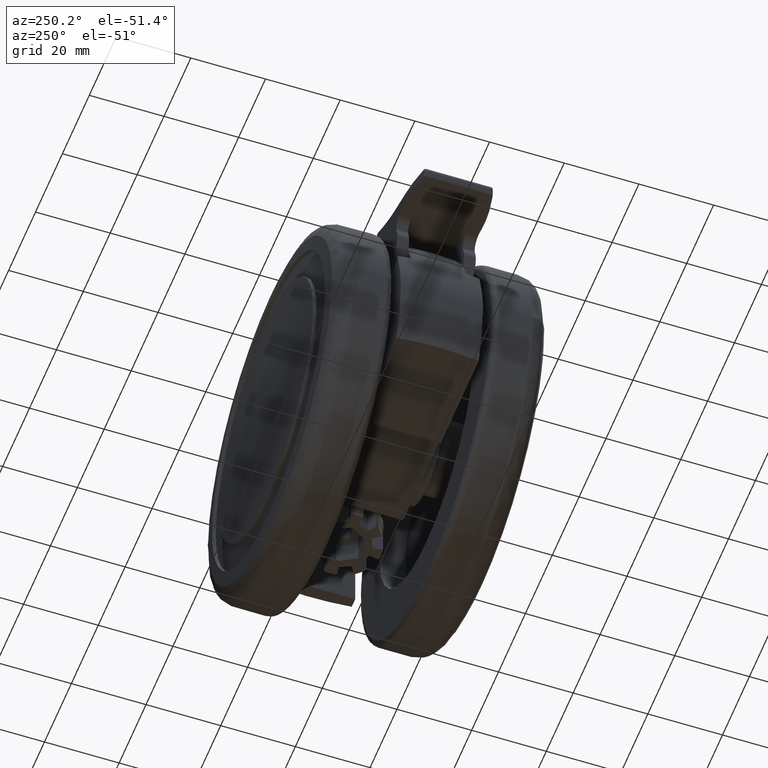
[diagram: clean part render]
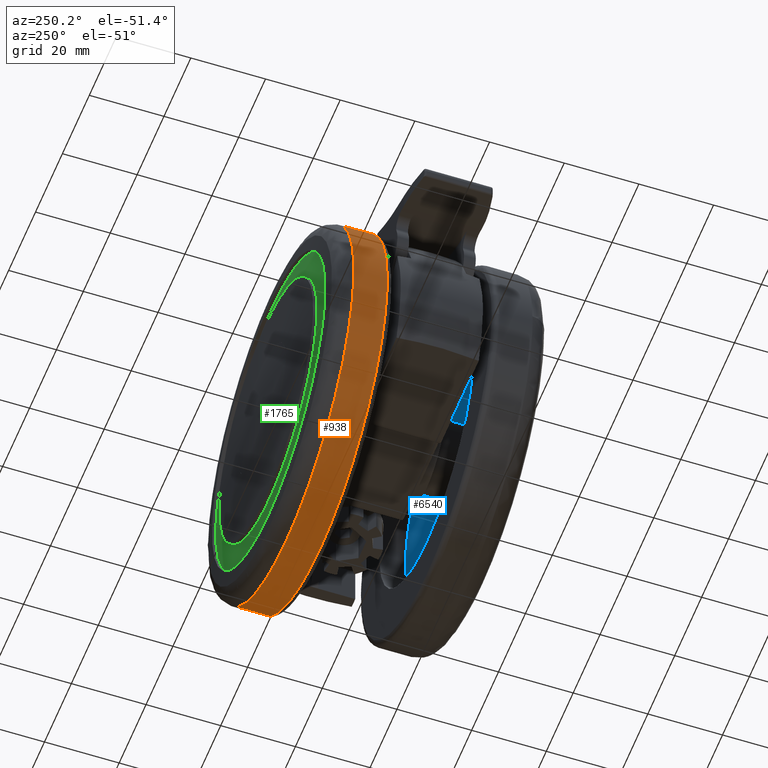
[diagram: same view with three faces highlighted in distinct colors, each labeled with its STEP entity id]
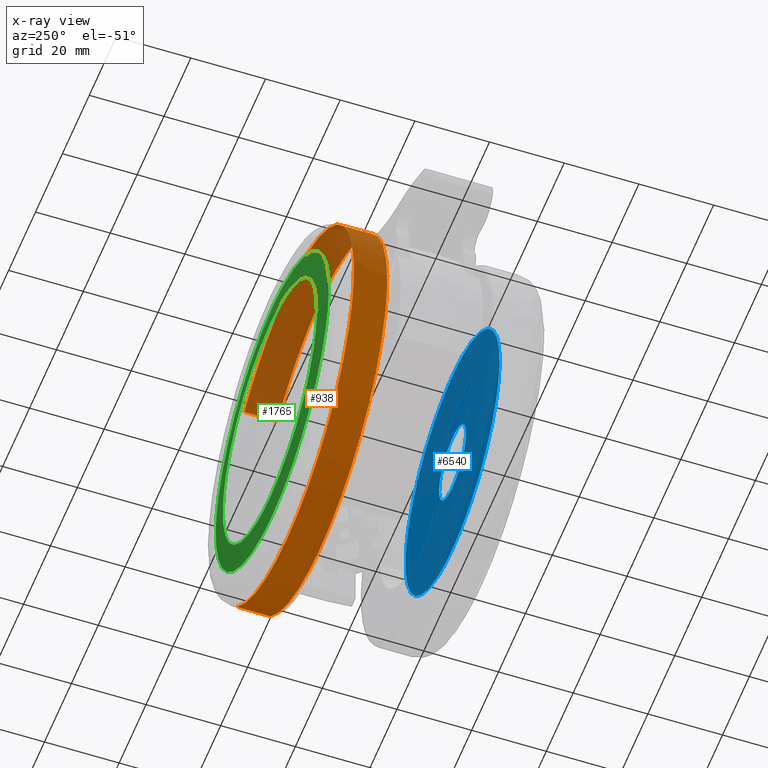
[diagram: x-ray of the same camera — body ghosted, the three highlighted faces saturated]
A machine part, auxiliary view with three faces highlighted in distinct colors.
The next image is the same camera in x-ray (body ghosted, the three faces saturated) — at least one of them is partly hidden behind the body in this view.
Their STEP definitions:

[orange] entity #938 — the highlighted face is a freeform B-spline surface patch.
#776=CARTESIAN_POINT('',(31.615890266188977,24.139445300475035,38.735455111258162));
#777=CARTESIAN_POINT('',(-4.964070014249776,24.139445300475032,68.592029839659190));
#778=CARTESIAN_POINT('',(-36.863866840506191,24.139445300475039,33.779510380783002));
#779=CARTESIAN_POINT('',(-70.643377221289199,24.139445300475042,-3.084356459723188));
#780=CARTESIAN_POINT('',(-33.779510380783002,24.139445300475039,-36.863866840506191));
#781=CARTESIAN_POINT('',(3.084356459723188,24.139445300475042,-70.643377221289199));
#782=CARTESIAN_POINT('',(36.863866840506191,24.139445300475039,-33.779510380783002));
#783=CARTESIAN_POINT('',(31.615890266188977,14.771513861082045,38.735455111258162));
#784=CARTESIAN_POINT('',(-4.964070014249776,14.771513861082044,68.592029839659190));
#785=CARTESIAN_POINT('',(-36.863866840506191,14.771513861082051,33.779510380783002));
#786=CARTESIAN_POINT('',(-70.643377221289199,14.771513861082051,-3.084356459723188));
#787=CARTESIAN_POINT('',(-33.779510380783002,14.771513861082051,-36.863866840506191));
#788=CARTESIAN_POINT('',(3.084356459723188,14.771513861082051,-70.643377221289199));
#789=CARTESIAN_POINT('',(36.863866840506191,14.771513861082051,-33.779510380783002));
#797=(BOUNDED_SURFACE()B_SPLINE_SURFACE(2,1,((#776,#783),(#777,#784),(#778,#785),(#779,#786),(#780,#787),(#781,#788),(#782,#789)),.UNSPECIFIED.,.F.,.F.,.U.)B_SPLINE_SURFACE_WITH_KNOTS((3,2,2,3),(2,2),(0.0,79.529003975634240,162.371716450253300,245.214428924872290),(0.0,9.367931439392990),.UNSPECIFIED.)GEOMETRIC_REPRESENTATION_ITEM()RATIONAL_B_SPLINE_SURFACE(((0.977505800795127,0.977505800795127),(0.718822509939086,0.718822509939086),(1.0,1.0),(0.707106781186548,0.707106781186548),(1.0,1.0),(0.707106781186548,0.707106781186548),(1.0,1.0)))REPRESENTATION_ITEM('')SURFACE());
#798=CARTESIAN_POINT('',(0.0,23.916532000000000,50.0));
#799=VERTEX_POINT('',#798);
#800=CARTESIAN_POINT('',(31.615886734342919,23.916532000065072,38.735457993937111));
#801=VERTEX_POINT('',#800);
#802=CARTESIAN_POINT('',(0.0,23.916532000000000,50.0));
#803=CARTESIAN_POINT('',(17.814686174543560,23.916531999999997,50.0));
#804=CARTESIAN_POINT('',(31.615886734342919,23.916532000065079,38.735457993937111));
#812=(BOUNDED_CURVE()B_SPLINE_CURVE(2,(#802,#803,#804),.UNSPECIFIED.,.F.,.U.)B_SPLINE_CURVE_WITH_KNOTS((3,3),(0.0,0.109768964436381),.UNSPECIFIED.)CURVE()GEOMETRIC_REPRESENTATION_ITEM()RATIONAL_B_SPLINE_CURVE((1.0,0.871397658721636,0.855727684053033))REPRESENTATION_ITEM(''));
#813=EDGE_CURVE('',#799,#801,#812,.T.);
#814=ORIENTED_EDGE('',*,*,#813,.F.);
#815=CARTESIAN_POINT('',(-49.806680457157938,23.916532000311019,-4.392559827544803));
#816=VERTEX_POINT('',#815);
#817=CARTESIAN_POINT('',(-49.806680457157938,23.916532000311015,-4.392559827544803));
#818=CARTESIAN_POINT('',(-50.000000000000007,23.916532000000000,-2.200533975998728));
#819=CARTESIAN_POINT('',(-50.0,23.916532000000000,0.0));
#820=CARTESIAN_POINT('',(-49.999999999999993,23.916531999999997,49.999999999999993));
#821=CARTESIAN_POINT('',(0.0,23.916532000000000,50.0));
#829=(BOUNDED_CURVE()B_SPLINE_CURVE(2,(#817,#818,#819,#820,#821),.UNSPECIFIED.,.F.,.U.)B_SPLINE_CURVE_WITH_KNOTS((3,2,3),(0.734718454855990,0.750000000000000,1.0),.UNSPECIFIED.)CURVE()GEOMETRIC_REPRESENTATION_ITEM()RATIONAL_B_SPLINE_CURVE((0.966381850709810,0.982096556217312,1.0,0.707106781186547,1.0))REPRESENTATION_ITEM(''));
#830=EDGE_CURVE('',#816,#799,#829,.T.);
#831=ORIENTED_EDGE('',*,*,#830,.F.);
#832=CARTESIAN_POINT('',(0.0,23.916532000000000,-50.0));
#833=VERTEX_POINT('',#832);
#834=CARTESIAN_POINT('',(0.0,23.916532000000000,-50.0));
#835=CARTESIAN_POINT('',(-45.784460793044012,23.916532000000004,-49.999999999999993));
#836=CARTESIAN_POINT('',(-49.806680457157938,23.916532000311015,-4.392559827544803));
#844=(BOUNDED_CURVE()B_SPLINE_CURVE(2,(#834,#835,#836),.UNSPECIFIED.,.F.,.U.)B_SPLINE_CURVE_WITH_KNOTS((3,3),(0.500000000000000,0.734718454855991),.UNSPECIFIED.)CURVE()GEOMETRIC_REPRESENTATION_ITEM()RATIONAL_B_SPLINE_CURVE((1.0,0.725010224969235,0.966381850709812))REPRESENTATION_ITEM(''));
#845=EDGE_CURVE('',#833,#816,#844,.T.);
#846=ORIENTED_EDGE('',*,*,#845,.F.);
#847=CARTESIAN_POINT('',(36.863868238531467,23.916531999999918,-33.779508855106009));
#848=VERTEX_POINT('',#847);
#849=CARTESIAN_POINT('',(36.863868238531516,23.916532000000000,-33.779508855106045));
#850=CARTESIAN_POINT('',(22.000527779582949,23.916532000000004,-50.000000000000014));
#851=CARTESIAN_POINT('',(0.0,23.916532000000000,-50.0));
#859=(BOUNDED_CURVE()B_SPLINE_CURVE(2,(#849,#850,#851),.UNSPECIFIED.,.F.,.U.)B_SPLINE_CURVE_WITH_KNOTS((3,3),(0.368415202836315,0.500000000000000),.UNSPECIFIED.)CURVE()GEOMETRIC_REPRESENTATION_ITEM()RATIONAL_B_SPLINE_CURVE((0.853959781609135,0.845838820847252,1.0))REPRESENTATION_ITEM(''));
#860=EDGE_CURVE('',#848,#833,#859,.T.);
#861=ORIENTED_EDGE('',*,*,#860,.F.);
#862=CARTESIAN_POINT('',(36.863869205047358,14.999999997920209,-33.779507800283461));
#863=VERTEX_POINT('',#862);
#864=CARTESIAN_POINT('',(36.863868238531467,23.916531999999918,-33.779508855106009));
#865=CARTESIAN_POINT('',(36.863869205047358,14.999999997920209,-33.779507800283461));
#866=QUASI_UNIFORM_CURVE('',1,(#864,#865),.UNSPECIFIED.,.F.,.U.);
#867=EDGE_CURVE('',#848,#863,#866,.T.);
#868=ORIENTED_EDGE('',*,*,#867,.T.);
#869=CARTESIAN_POINT('',(0.0,15.0,-50.0));
#870=VERTEX_POINT('',#869);
#871=CARTESIAN_POINT('',(36.863869205047358,14.999999997920215,-33.779507800283461));
#872=CARTESIAN_POINT('',(22.000528633359519,14.999999999999995,-49.999999999999993));
#873=CARTESIAN_POINT('',(0.0,15.0,-50.0));
#881=(BOUNDED_CURVE()B_SPLINE_CURVE(2,(#871,#872,#873),.UNSPECIFIED.,.F.,.U.)B_SPLINE_CURVE_WITH_KNOTS((3,3),(0.368415198517103,0.500000000000000),.UNSPECIFIED.)CURVE()GEOMETRIC_REPRESENTATION_ITEM()RATIONAL_B_SPLINE_CURVE((0.853959782142269,0.845838815786981,1.0))REPRESENTATION_ITEM(''));
#882=EDGE_CURVE('',#863,#870,#881,.T.);
#883=ORIENTED_EDGE('',*,*,#882,.T.);
#884=CARTESIAN_POINT('',(-49.984209464156407,14.999999993750169,1.256504772508648));
#885=VERTEX_POINT('',#884);
#886=CARTESIAN_POINT('',(0.0,15.0,-50.0));
#887=CARTESIAN_POINT('',(-49.999999999999993,14.999999999999996,-49.999999999999993));
#888=CARTESIAN_POINT('',(-50.0,15.0,0.0));
#889=CARTESIAN_POINT('',(-49.999999999999993,14.999999999999995,0.628351606510832));
#890=CARTESIAN_POINT('',(-49.984209464156415,14.999999993750171,1.256504772508647));
#898=(BOUNDED_CURVE()B_SPLINE_CURVE(2,(#886,#887,#888,#889,#890),.UNSPECIFIED.,.F.,.U.)B_SPLINE_CURVE_WITH_KNOTS((3,2,3),(0.500000000000000,0.750000000000000,0.754420108232585),.UNSPECIFIED.)CURVE()GEOMETRIC_REPRESENTATION_ITEM()RATIONAL_B_SPLINE_CURVE((1.0,0.707106781186547,1.0,0.994821521089018,0.989826157676169))REPRESENTATION_ITEM(''));
#899=EDGE_CURVE('',#870,#885,#898,.T.);
#900=ORIENTED_EDGE('',*,*,#899,.T.);
#901=CARTESIAN_POINT('',(0.0,15.0,50.0));
#902=VERTEX_POINT('',#901);
#903=CARTESIAN_POINT('',(-49.984209464156415,14.999999993750173,1.256504772508648));
#904=CARTESIAN_POINT('',(-48.758893808365457,15.000000000000005,49.999999999999993));
#905=CARTESIAN_POINT('',(0.0,15.0,50.0));
#913=(BOUNDED_CURVE()B_SPLINE_CURVE(2,(#903,#904,#905),.UNSPECIFIED.,.F.,.U.)B_SPLINE_CURVE_WITH_KNOTS((3,3),(0.754420108232585,1.0),.UNSPECIFIED.)CURVE()GEOMETRIC_REPRESENTATION_ITEM()RATIONAL_B_SPLINE_CURVE((0.989826157676168,0.712285260097530,1.0))REPRESENTATION_ITEM(''));
#914=EDGE_CURVE('',#885,#902,#913,.T.);
#915=ORIENTED_EDGE('',*,*,#914,.T.);
#916=CARTESIAN_POINT('',(31.615886728408181,15.0,38.735457998795383));
#917=VERTEX_POINT('',#916);
#918=CARTESIAN_POINT('',(0.0,15.0,50.0));
#919=CARTESIAN_POINT('',(17.814686170232793,15.000000000000002,49.999999999999986));
#920=CARTESIAN_POINT('',(31.615886728408181,14.999999999999998,38.735457998795383));
#928=(BOUNDED_CURVE()B_SPLINE_CURVE(2,(#918,#919,#920),.UNSPECIFIED.,.F.,.U.)B_SPLINE_CURVE_WITH_KNOTS((3,3),(0.0,0.109768964413235),.UNSPECIFIED.)CURVE()GEOMETRIC_REPRESENTATION_ITEM()RATIONAL_B_SPLINE_CURVE((1.0,0.871397658748753,0.855727684059641))REPRESENTATION_ITEM(''));
#929=EDGE_CURVE('',#902,#917,#928,.T.);
#930=ORIENTED_EDGE('',*,*,#929,.T.);
#931=CARTESIAN_POINT('',(31.615886734342919,23.916532000065072,38.735457993937111));
#932=CARTESIAN_POINT('',(31.615886728408181,15.0,38.735457998795383));
#933=QUASI_UNIFORM_CURVE('',1,(#931,#932),.UNSPECIFIED.,.F.,.U.);
#934=EDGE_CURVE('',#801,#917,#933,.T.);
#935=ORIENTED_EDGE('',*,*,#934,.F.);
#936=EDGE_LOOP('',(#814,#831,#846,#861,#868,#883,#900,#915,#930,#935));
#937=FACE_OUTER_BOUND('',#936,.T.);
#938=ADVANCED_FACE('',(#937),#797,.T.);

[blue] entity #6540 — the highlighted face is a freeform B-spline surface patch.
#5772=CARTESIAN_POINT('',(-34.934720154284733,-20.500000000000000,-2.136662757784329));
#5773=VERTEX_POINT('',#5772);
#5779=CARTESIAN_POINT('',(0.0,-20.500000000000000,-35.0));
#5780=VERTEX_POINT('',#5779);
#5781=CARTESIAN_POINT('',(0.0,-20.500000000000000,-35.0));
#5782=CARTESIAN_POINT('',(-32.924746452729771,-20.500000000000011,-34.999999999999993));
#5783=CARTESIAN_POINT('',(-34.934720154284733,-20.500000000000004,-2.136662757784329));
#5791=(BOUNDED_CURVE()B_SPLINE_CURVE(2,(#5781,#5782,#5783),.UNSPECIFIED.,.F.,.U.)B_SPLINE_CURVE_WITH_KNOTS((3,3),(0.500000000000000,0.739333140672350),.UNSPECIFIED.)CURVE()GEOMETRIC_REPRESENTATION_ITEM()RATIONAL_B_SPLINE_CURVE((1.0,0.719603784238970,0.976072424083774))REPRESENTATION_ITEM(''));
#5792=EDGE_CURVE('',#5780,#5773,#5791,.T.);
#5794=CARTESIAN_POINT('',(34.755336269401873,-20.500000000000000,4.131174264082503));
#5795=VERTEX_POINT('',#5794);
#5796=CARTESIAN_POINT('',(34.755336269401859,-20.500000000000000,4.131174264082503));
#5797=CARTESIAN_POINT('',(35.000000000000007,-20.500000000000004,2.072832086773691));
#5798=CARTESIAN_POINT('',(35.0,-20.500000000000000,0.0));
#5799=CARTESIAN_POINT('',(34.999999999999993,-20.500000000000007,-34.999999999999993));
#5800=CARTESIAN_POINT('',(0.0,-20.500000000000000,-35.0));
#5808=(BOUNDED_CURVE()B_SPLINE_CURVE(2,(#5796,#5797,#5798,#5799,#5800),.UNSPECIFIED.,.F.,.U.)B_SPLINE_CURVE_WITH_KNOTS((3,2,3),(0.229562589970944,0.250000000000000,0.500000000000000),.UNSPECIFIED.)CURVE()GEOMETRIC_REPRESENTATION_ITEM()RATIONAL_B_SPLINE_CURVE((0.956026982445166,0.976056084769518,1.0,0.707106781186548,1.0))REPRESENTATION_ITEM(''));
#5809=EDGE_CURVE('',#5795,#5780,#5808,.T.);
#5853=CARTESIAN_POINT('',(0.0,-20.500000000000000,35.0));
#5854=VERTEX_POINT('',#5853);
#5855=CARTESIAN_POINT('',(0.0,-20.500000000000000,35.0));
#5856=CARTESIAN_POINT('',(31.086129979642852,-20.500000000000000,35.0));
#5857=CARTESIAN_POINT('',(34.755336269401859,-20.500000000000000,4.131174264082503));
#5865=(BOUNDED_CURVE()B_SPLINE_CURVE(2,(#5855,#5856,#5857),.UNSPECIFIED.,.F.,.U.)B_SPLINE_CURVE_WITH_KNOTS((3,3),(0.0,0.229562589970944),.UNSPECIFIED.)CURVE()GEOMETRIC_REPRESENTATION_ITEM()RATIONAL_B_SPLINE_CURVE((1.0,0.731050696417030,0.956026982445166))REPRESENTATION_ITEM(''));
#5866=EDGE_CURVE('',#5854,#5795,#5865,.T.);
#5868=CARTESIAN_POINT('',(-34.934720154284733,-20.500000000000004,-2.136662757784329));
#5869=CARTESIAN_POINT('',(-35.0,-20.499999999999996,-1.069328601837405));
#5870=CARTESIAN_POINT('',(-35.0,-20.500000000000000,0.0));
#5871=CARTESIAN_POINT('',(-34.999999999999993,-20.500000000000007,34.999999999999993));
#5872=CARTESIAN_POINT('',(0.0,-20.500000000000000,35.0));
#5880=(BOUNDED_CURVE()B_SPLINE_CURVE(2,(#5868,#5869,#5870,#5871,#5872),.UNSPECIFIED.,.F.,.U.)B_SPLINE_CURVE_WITH_KNOTS((3,2,3),(0.739333140672350,0.750000000000000,1.0),.UNSPECIFIED.)CURVE()GEOMETRIC_REPRESENTATION_ITEM()RATIONAL_B_SPLINE_CURVE((0.976072424083774,0.987502996947577,1.0,0.707106781186548,1.0))REPRESENTATION_ITEM(''));
#5881=EDGE_CURVE('',#5773,#5854,#5880,.T.);
#5924=CARTESIAN_POINT('',(9.930095263613215,-20.500000000000000,1.180342346764852));
#5925=VERTEX_POINT('',#5924);
#5926=CARTESIAN_POINT('',(0.0,-20.500000000000000,-10.0));
#5927=VERTEX_POINT('',#5926);
#5928=CARTESIAN_POINT('',(9.930095263613215,-20.500000000000004,1.180342346764851));
#5929=CARTESIAN_POINT('',(10.000000000000002,-20.500000000000004,0.592241196718454));
#5930=CARTESIAN_POINT('',(10.0,-20.500000000000000,0.0));
#5931=CARTESIAN_POINT('',(10.000000000000002,-20.500000000000007,-10.000000000000002));
#5932=CARTESIAN_POINT('',(0.0,-20.500000000000000,-10.0));
#5940=(BOUNDED_CURVE()B_SPLINE_CURVE(2,(#5928,#5929,#5930,#5931,#5932),.UNSPECIFIED.,.F.,.U.)B_SPLINE_CURVE_WITH_KNOTS((3,2,3),(0.229562473508930,0.250000000000000,0.500000000000000),.UNSPECIFIED.)CURVE()GEOMETRIC_REPRESENTATION_ITEM()RATIONAL_B_SPLINE_CURVE((0.956026754174725,0.976055948325781,1.0,0.707106781186548,1.0))REPRESENTATION_ITEM(''));
#5941=EDGE_CURVE('',#5925,#5927,#5940,.T.);
#5943=CARTESIAN_POINT('',(-9.981347984204462,-20.500000000000011,-0.610485395580840));
#5944=VERTEX_POINT('',#5943);
#5945=CARTESIAN_POINT('',(0.0,-20.500000000000000,-10.0));
#5946=CARTESIAN_POINT('',(-9.407060668618325,-20.500000000000007,-10.0));
#5947=CARTESIAN_POINT('',(-9.981347984204462,-20.500000000000000,-0.610485395580840));
#5955=(BOUNDED_CURVE()B_SPLINE_CURVE(2,(#5945,#5946,#5947),.UNSPECIFIED.,.F.,.U.)B_SPLINE_CURVE_WITH_KNOTS((3,3),(0.500000000000000,0.739332962233938),.UNSPECIFIED.)CURVE()GEOMETRIC_REPRESENTATION_ITEM()RATIONAL_B_SPLINE_CURVE((1.0,0.719603993292574,0.976072041655991))REPRESENTATION_ITEM(''));
#5956=EDGE_CURVE('',#5927,#5944,#5955,.T.);
#6023=CARTESIAN_POINT('',(0.0,-20.500000000000000,10.0));
#6024=VERTEX_POINT('',#6023);
#6025=CARTESIAN_POINT('',(0.0,-20.500000000000000,10.0));
#6026=CARTESIAN_POINT('',(8.881745259158315,-20.500000000000004,10.0));
#6027=CARTESIAN_POINT('',(9.930095263613215,-20.500000000000000,1.180342346764852));
#6035=(BOUNDED_CURVE()B_SPLINE_CURVE(2,(#6025,#6026,#6027),.UNSPECIFIED.,.F.,.U.)B_SPLINE_CURVE_WITH_KNOTS((3,3),(0.0,0.229562473508930),.UNSPECIFIED.)CURVE()GEOMETRIC_REPRESENTATION_ITEM()RATIONAL_B_SPLINE_CURVE((1.0,0.731050832860767,0.956026754174725))REPRESENTATION_ITEM(''));
#6036=EDGE_CURVE('',#6024,#5925,#6035,.T.);
#6070=CARTESIAN_POINT('',(-9.981347984204462,-20.500000000000007,-0.610485395580840));
#6071=CARTESIAN_POINT('',(-10.0,-20.500000000000000,-0.305527633218810));
#6072=CARTESIAN_POINT('',(-10.0,-20.500000000000000,0.0));
#6073=CARTESIAN_POINT('',(-10.000000000000002,-20.500000000000007,10.000000000000002));
#6074=CARTESIAN_POINT('',(0.0,-20.500000000000000,10.0));
#6082=(BOUNDED_CURVE()B_SPLINE_CURVE(2,(#6070,#6071,#6072,#6073,#6074),.UNSPECIFIED.,.F.,.U.)B_SPLINE_CURVE_WITH_KNOTS((3,2,3),(0.739332962233938,0.750000000000000,1.0),.UNSPECIFIED.)CURVE()GEOMETRIC_REPRESENTATION_ITEM()RATIONAL_B_SPLINE_CURVE((0.976072041655991,0.987502787893974,1.0,0.707106781186548,1.0))REPRESENTATION_ITEM(''));
#6083=EDGE_CURVE('',#5944,#6024,#6082,.T.);
#6523=CARTESIAN_POINT('',(-38.495650623875797,-20.500000000000000,-38.496499864326417));
#6524=CARTESIAN_POINT('',(-38.495650623875797,-20.500000000000000,38.496501741872727));
#6525=CARTESIAN_POINT('',(38.495863412457652,-20.500000000000000,-38.496499864326417));
#6526=CARTESIAN_POINT('',(38.495863412457652,-20.500000000000000,38.496501741872727));
#6527=B_SPLINE_SURFACE_WITH_KNOTS('',1,1,((#6523,#6525),(#6524,#6526)),.UNSPECIFIED.,.F.,.F.,.U.,(2,2),(2,2),(0.0,76.993001606199158),(0.0,76.991514036333456),.UNSPECIFIED.);
#6528=ORIENTED_EDGE('',*,*,#5866,.T.);
#6529=ORIENTED_EDGE('',*,*,#5809,.T.);
#6530=ORIENTED_EDGE('',*,*,#5792,.T.);
#6531=ORIENTED_EDGE('',*,*,#5881,.T.);
#6532=EDGE_LOOP('',(#6528,#6529,#6530,#6531));
#6533=FACE_OUTER_BOUND('',#6532,.T.);
#6534=ORIENTED_EDGE('',*,*,#5956,.F.);
#6535=ORIENTED_EDGE('',*,*,#5941,.F.);
#6536=ORIENTED_EDGE('',*,*,#6036,.F.);
#6537=ORIENTED_EDGE('',*,*,#6083,.F.);
#6538=EDGE_LOOP('',(#6534,#6535,#6536,#6537));
#6539=FACE_BOUND('',#6538,.T.);
#6540=ADVANCED_FACE('',(#6533,#6539),#6527,.T.);

[green] entity #1765 — the highlighted face is a freeform B-spline surface patch.
#464=CARTESIAN_POINT('',(-34.892110147810257,28.426129330010252,-2.746024295435772));
#465=VERTEX_POINT('',#464);
#471=CARTESIAN_POINT('',(0.0,28.426129330010252,35.0));
#472=VERTEX_POINT('',#471);
#473=CARTESIAN_POINT('',(-34.892110147810257,28.426129330010248,-2.746024295435772));
#474=CARTESIAN_POINT('',(-34.999999999999993,28.426129330010248,-1.375131615529014));
#475=CARTESIAN_POINT('',(-35.0,28.426129330010252,0.0));
#476=CARTESIAN_POINT('',(-34.999999999999993,28.426129330010248,34.999999999999993));
#477=CARTESIAN_POINT('',(0.0,28.426129330010252,35.0));
#485=(BOUNDED_CURVE()B_SPLINE_CURVE(2,(#473,#474,#475,#476,#477),.UNSPECIFIED.,.F.,.U.)B_SPLINE_CURVE_WITH_KNOTS((3,2,3),(0.736331517074659,0.750000000000000,1.0),.UNSPECIFIED.)CURVE()GEOMETRIC_REPRESENTATION_ITEM()RATIONAL_B_SPLINE_CURVE((0.969723807869971,0.983986376158800,1.0,0.707106781186548,1.0))REPRESENTATION_ITEM(''));
#486=EDGE_CURVE('',#465,#472,#485,.T.);
#488=CARTESIAN_POINT('',(34.892110147810257,28.426129330010252,2.746024295435781));
#489=VERTEX_POINT('',#488);
#490=CARTESIAN_POINT('',(0.0,28.426129330010252,35.0));
#491=CARTESIAN_POINT('',(32.353708184359206,28.426129330010252,35.000000000000007));
#492=CARTESIAN_POINT('',(34.892110147810257,28.426129330010252,2.746024295435781));
#500=(BOUNDED_CURVE()B_SPLINE_CURVE(2,(#490,#491,#492),.UNSPECIFIED.,.F.,.U.)B_SPLINE_CURVE_WITH_KNOTS((3,3),(0.0,0.236331517074659),.UNSPECIFIED.)CURVE()GEOMETRIC_REPRESENTATION_ITEM()RATIONAL_B_SPLINE_CURVE((1.0,0.723120405027747,0.969723807869971))REPRESENTATION_ITEM(''));
#501=EDGE_CURVE('',#472,#489,#500,.T.);
#547=CARTESIAN_POINT('',(0.0,28.426129330010252,-35.0));
#548=VERTEX_POINT('',#547);
#549=CARTESIAN_POINT('',(34.892110147810257,28.426129330010252,2.746024295435781));
#550=CARTESIAN_POINT('',(35.0,28.426129330010252,1.375131615529022));
#551=CARTESIAN_POINT('',(35.0,28.426129330010252,0.0));
#552=CARTESIAN_POINT('',(34.999999999999993,28.426129330010248,-34.999999999999993));
#553=CARTESIAN_POINT('',(0.0,28.426129330010252,-35.0));
#561=(BOUNDED_CURVE()B_SPLINE_CURVE(2,(#549,#550,#551,#552,#553),.UNSPECIFIED.,.F.,.U.)B_SPLINE_CURVE_WITH_KNOTS((3,2,3),(0.236331517074659,0.250000000000000,0.500000000000000),.UNSPECIFIED.)CURVE()GEOMETRIC_REPRESENTATION_ITEM()RATIONAL_B_SPLINE_CURVE((0.969723807869971,0.983986376158800,1.0,0.707106781186548,1.0))REPRESENTATION_ITEM(''));
#562=EDGE_CURVE('',#489,#548,#561,.T.);
#564=CARTESIAN_POINT('',(0.0,28.426129330010252,-35.0));
#565=CARTESIAN_POINT('',(-32.353708184359206,28.426129330010255,-34.999999999999993));
#566=CARTESIAN_POINT('',(-34.892110147810257,28.426129330010248,-2.746024295435772));
#574=(BOUNDED_CURVE()B_SPLINE_CURVE(2,(#564,#565,#566),.UNSPECIFIED.,.F.,.U.)B_SPLINE_CURVE_WITH_KNOTS((3,3),(0.500000000000000,0.736331517074659),.UNSPECIFIED.)CURVE()GEOMETRIC_REPRESENTATION_ITEM()RATIONAL_B_SPLINE_CURVE((1.0,0.723120405027747,0.969723807869971))REPRESENTATION_ITEM(''));
#575=EDGE_CURVE('',#548,#465,#574,.T.);
#612=CARTESIAN_POINT('',(0.0,27.795357728205751,42.0));
#613=VERTEX_POINT('',#612);
#614=CARTESIAN_POINT('',(41.870531531057132,27.795357728202479,3.295237366980426));
#615=VERTEX_POINT('',#614);
#616=CARTESIAN_POINT('',(0.0,27.795357728205751,42.0));
#617=CARTESIAN_POINT('',(38.824442182685054,27.795357728205744,42.000000000000007));
#618=CARTESIAN_POINT('',(41.870531531057125,27.795357728202486,3.295237366980425));
#626=(BOUNDED_CURVE()B_SPLINE_CURVE(2,(#616,#617,#618),.UNSPECIFIED.,.F.,.U.)B_SPLINE_CURVE_WITH_KNOTS((3,3),(0.0,0.236331483451565),.UNSPECIFIED.)CURVE()GEOMETRIC_REPRESENTATION_ITEM()RATIONAL_B_SPLINE_CURVE((1.0,0.723120444419652,0.969723737701013))REPRESENTATION_ITEM(''));
#627=EDGE_CURVE('',#613,#615,#626,.T.);
#629=CARTESIAN_POINT('',(-41.870531531057132,27.795357728202479,-3.295237366980431));
#630=VERTEX_POINT('',#629);
#631=CARTESIAN_POINT('',(-41.870531531057125,27.795357728202486,-3.295237366980432));
#632=CARTESIAN_POINT('',(-42.000000000000014,27.795357728205751,-1.650162063918338));
#633=CARTESIAN_POINT('',(-42.0,27.795357728205751,0.0));
#634=CARTESIAN_POINT('',(-41.999999999999993,27.795357728205744,41.999999999999993));
#635=CARTESIAN_POINT('',(0.0,27.795357728205751,42.0));
#643=(BOUNDED_CURVE()B_SPLINE_CURVE(2,(#631,#632,#633,#634,#635),.UNSPECIFIED.,.F.,.U.)B_SPLINE_CURVE_WITH_KNOTS((3,2,3),(0.736331483451565,0.750000000000000,1.0),.UNSPECIFIED.)CURVE()GEOMETRIC_REPRESENTATION_ITEM()RATIONAL_B_SPLINE_CURVE((0.969723737701013,0.983986336766896,1.0,0.707106781186547,1.0))REPRESENTATION_ITEM(''));
#644=EDGE_CURVE('',#630,#613,#643,.T.);
#711=CARTESIAN_POINT('',(0.0,27.795357728205751,-42.0));
#712=VERTEX_POINT('',#711);
#713=CARTESIAN_POINT('',(41.870531531057125,27.795357728202486,3.295237366980425));
#714=CARTESIAN_POINT('',(42.000000000000014,27.795357728205751,1.650162063918338));
#715=CARTESIAN_POINT('',(42.0,27.795357728205751,0.0));
#716=CARTESIAN_POINT('',(41.999999999999993,27.795357728205744,-41.999999999999993));
#717=CARTESIAN_POINT('',(0.0,27.795357728205751,-42.0));
#725=(BOUNDED_CURVE()B_SPLINE_CURVE(2,(#713,#714,#715,#716,#717),.UNSPECIFIED.,.F.,.U.)B_SPLINE_CURVE_WITH_KNOTS((3,2,3),(0.236331483451565,0.250000000000000,0.500000000000000),.UNSPECIFIED.)CURVE()GEOMETRIC_REPRESENTATION_ITEM()RATIONAL_B_SPLINE_CURVE((0.969723737701013,0.983986336766896,1.0,0.707106781186547,1.0))REPRESENTATION_ITEM(''));
#726=EDGE_CURVE('',#615,#712,#725,.T.);
#760=CARTESIAN_POINT('',(0.0,27.795357728205751,-42.0));
#761=CARTESIAN_POINT('',(-38.824442182685054,27.795357728205744,-42.000000000000007));
#762=CARTESIAN_POINT('',(-41.870531531057125,27.795357728202486,-3.295237366980432));
#770=(BOUNDED_CURVE()B_SPLINE_CURVE(2,(#760,#761,#762),.UNSPECIFIED.,.F.,.U.)B_SPLINE_CURVE_WITH_KNOTS((3,3),(0.500000000000000,0.736331483451565),.UNSPECIFIED.)CURVE()GEOMETRIC_REPRESENTATION_ITEM()RATIONAL_B_SPLINE_CURVE((1.0,0.723120444419652,0.969723737701013))REPRESENTATION_ITEM(''));
#771=EDGE_CURVE('',#712,#630,#770,.T.);
#1729=CARTESIAN_POINT('',(-46.026111298577476,24.888111721485700,46.038885953822302));
#1730=CARTESIAN_POINT('',(-23.079857601114448,27.364279774409297,46.172526939550870));
#1731=CARTESIAN_POINT('',(23.079861643695107,27.364279774409297,46.172526939550870));
#1732=CARTESIAN_POINT('',(46.026119313669490,24.888110856563838,46.038885907141690));
#1733=CARTESIAN_POINT('',(-46.159789592107707,27.365658490422167,23.086300675038370));
#1734=CARTESIAN_POINT('',(-23.147085917208901,29.856251999999809,23.153510445246852));
#1735=CARTESIAN_POINT('',(23.147089971565020,29.856251999999809,23.153510445246852));
#1736=CARTESIAN_POINT('',(46.159797630342887,27.365657620468880,23.086300651562315));
#1737=CARTESIAN_POINT('',(-46.159789592107707,27.365658490422167,-23.086304717625445));
#1738=CARTESIAN_POINT('',(-23.147085917208901,29.856251999999809,-23.153514499602871));
#1739=CARTESIAN_POINT('',(23.147089971565020,29.856251999999809,-23.153514499602871));
#1740=CARTESIAN_POINT('',(46.159797630342887,27.365657620468880,-23.086304694149387));
#1741=CARTESIAN_POINT('',(-46.026111251896864,24.888110856323792,-46.038893968888317));
#1742=CARTESIAN_POINT('',(-23.079857577638446,27.364278904217326,-46.172534977746977));
#1743=CARTESIAN_POINT('',(23.079861620219102,27.364278904217326,-46.172534977746977));
#1744=CARTESIAN_POINT('',(46.026119266988871,24.888109991401919,-46.038893922207698));
#1752=(BOUNDED_SURFACE()B_SPLINE_SURFACE(2,2,((#1729,#1733,#1737,#1741),(#1730,#1734,#1738,#1742),(#1731,#1735,#1739,#1743),(#1732,#1736,#1740,#1744)),.UNSPECIFIED.,.F.,.F.,.U.)B_SPLINE_SURFACE_WITH_KNOTS((3,1,3),(3,1,3),(146.503244448089590,191.612659318445710,236.722082089996410),(146.490724224090600,191.612659318445710,236.734602313995400),.UNSPECIFIED.)GEOMETRIC_REPRESENTATION_ITEM()RATIONAL_B_SPLINE_SURFACE(((1.005824096980547,1.002911240356544,1.002911240356544,1.005824098000674),(1.002912856624003,1.0,1.0,1.002912857644130),(1.002912856624003,1.0,1.0,1.002912857644130),(1.005824098000391,1.002911241376387,1.002911241376387,1.005824099020518)))REPRESENTATION_ITEM('')SURFACE());
#1753=ORIENTED_EDGE('',*,*,#627,.T.);
#1754=ORIENTED_EDGE('',*,*,#726,.T.);
#1755=ORIENTED_EDGE('',*,*,#771,.T.);
#1756=ORIENTED_EDGE('',*,*,#644,.T.);
#1757=EDGE_LOOP('',(#1753,#1754,#1755,#1756));
#1758=FACE_OUTER_BOUND('',#1757,.T.);
#1759=ORIENTED_EDGE('',*,*,#575,.F.);
#1760=ORIENTED_EDGE('',*,*,#562,.F.);
#1761=ORIENTED_EDGE('',*,*,#501,.F.);
#1762=ORIENTED_EDGE('',*,*,#486,.F.);
#1763=EDGE_LOOP('',(#1759,#1760,#1761,#1762));
#1764=FACE_BOUND('',#1763,.T.);
#1765=ADVANCED_FACE('',(#1758,#1764),#1752,.T.);